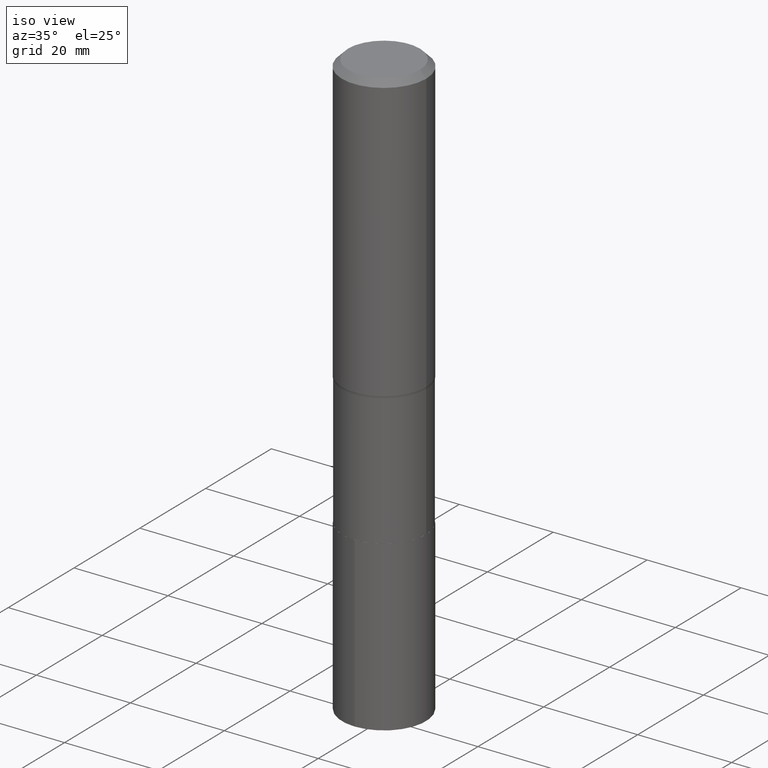
[diagram: clean part render]
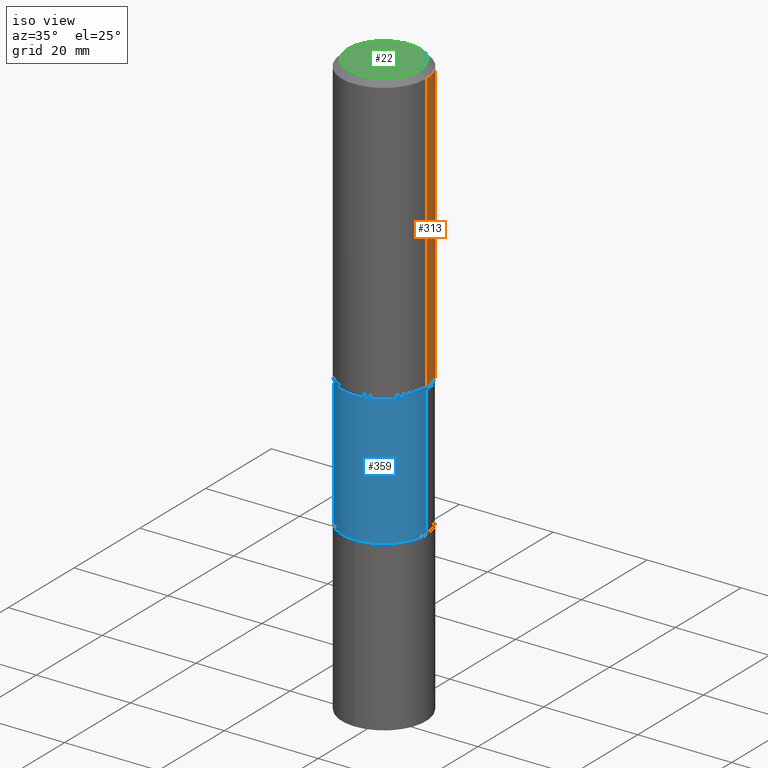
[diagram: same view with three faces highlighted in distinct colors, each labeled with its STEP entity id]
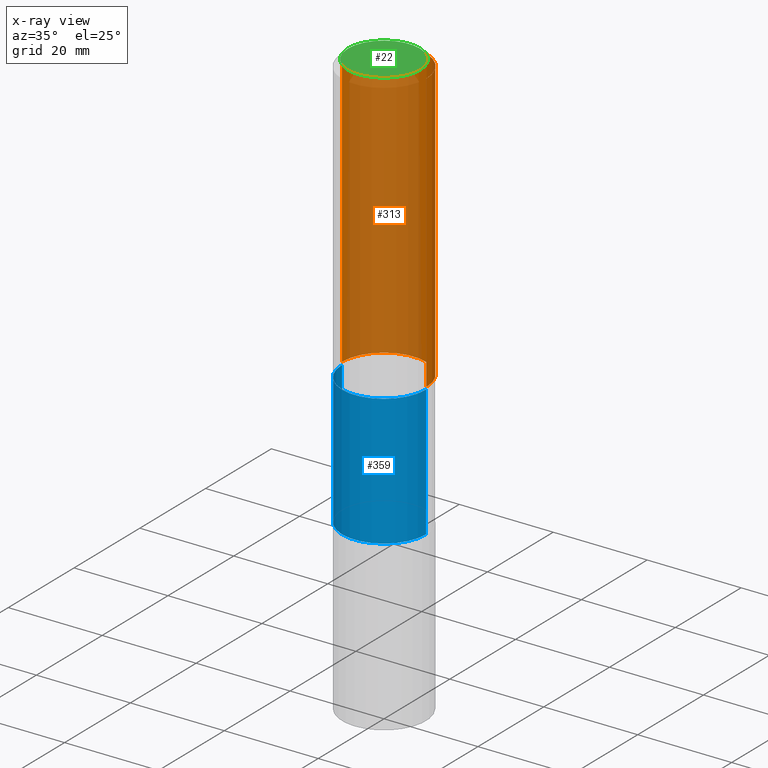
[diagram: x-ray of the same camera — body ghosted, the three highlighted faces saturated]
A machine part, iso view with three faces highlighted in distinct colors.
The next image is the same camera in x-ray (body ghosted, the three faces saturated) — at least one of them is partly hidden behind the body in this view.
Their STEP definitions:

[orange] entity #313 — the highlighted cylindrical surface (partial cylindrical patch) has radius 9.0005 mm, axis along (-0, 0, 1).
#2 = ORIENTED_EDGE ( 'NONE', *, *, #446, .T. ) ;
#21 = CARTESIAN_POINT ( 'NONE',  ( 0.3543500000000002759, -1.081493330997731886E-14, -2.388820009532888644 ) ) ;
#49 = CIRCLE ( 'NONE', #264, 0.3543500000000002759 ) ;
#54 = CARTESIAN_POINT ( 'NONE',  ( 0.3543500000000001648, -2.474412824838129483E-15, 1.727873240503290590E-29 ) ) ;
#59 = EDGE_LOOP ( 'NONE', ( #2, #254, #220, #343 ) ) ;
#99 = DIRECTION ( 'NONE',  ( 1.000000000000000000, -6.982962677686265922E-15, 4.876176775795935793E-29 ) ) ;
#100 = CARTESIAN_POINT ( 'NONE',  ( 1.299827807207562971E-30, -1.855809618628614763E-16, -0.05315250000000033143 ) ) ;
#103 = CIRCLE ( 'NONE', #425, 0.3543499999999999983 ) ;
#143 = CARTESIAN_POINT ( 'NONE',  ( 5.841784816903559502E-29, -8.340520485139185830E-15, -2.388820009532888644 ) ) ;
#148 = VERTEX_POINT ( 'NONE', #21 ) ;
#174 = VECTOR ( 'NONE', #381, 39.37007874015748143 ) ;
#187 = CARTESIAN_POINT ( 'NONE',  ( -0.3543499999999999983, -1.745242539335107473E-15, -0.05315250000000033143 ) ) ;
#220 = ORIENTED_EDGE ( 'NONE', *, *, #377, .F. ) ;
#232 = EDGE_CURVE ( 'NONE', #148, #389, #244, .T. ) ;
#244 = LINE ( 'NONE', #54, #451 ) ;
#248 = AXIS2_PLACEMENT_3D ( 'NONE', #288, #424, #99 ) ;
#252 = CYLINDRICAL_SURFACE ( 'NONE', #248, 0.3543500000000001648 ) ;
#254 = ORIENTED_EDGE ( 'NONE', *, *, #303, .T. ) ;
#264 = AXIS2_PLACEMENT_3D ( 'NONE', #143, #291, #281 ) ;
#274 = DIRECTION ( 'NONE',  ( -2.445468806185136877E-29, 3.491481338843145188E-15, 1.000000000000000000 ) ) ;
#281 = DIRECTION ( 'NONE',  ( 1.000000000000000000, -6.982962677686265922E-15, 0.000000000000000000 ) ) ;
#288 = CARTESIAN_POINT ( 'NONE',  ( 0.000000000000000000, 0.000000000000000000, 0.000000000000000000 ) ) ;
#291 = DIRECTION ( 'NONE',  ( -2.445468806185136597E-29, 3.491481338843145583E-15, 1.000000000000000000 ) ) ;
#303 = EDGE_CURVE ( 'NONE', #325, #466, #418, .T. ) ;
#309 = FACE_OUTER_BOUND ( 'NONE', #59, .T. ) ;
#312 = DIRECTION ( 'NONE',  ( -2.445468806185136597E-29, 3.491481338843145583E-15, 1.000000000000000000 ) ) ;
#313 = ADVANCED_FACE ( 'NONE', ( #309 ), #252, .T. ) ;
#325 = VERTEX_POINT ( 'NONE', #348 ) ;
#342 = CARTESIAN_POINT ( 'NONE',  ( -0.3543500000000001648, 2.517808184165916180E-15, -1.743024649231826627E-29 ) ) ;
#343 = ORIENTED_EDGE ( 'NONE', *, *, #232, .F. ) ;
#344 = CARTESIAN_POINT ( 'NONE',  ( 0.3543499999999999983, -2.659993786700990170E-15, -0.05315250000000033143 ) ) ;
#348 = CARTESIAN_POINT ( 'NONE',  ( -0.3543500000000002759, -5.822712300973268862E-15, -2.388820009532888644 ) ) ;
#377 = EDGE_CURVE ( 'NONE', #389, #466, #103, .T. ) ;
#381 = DIRECTION ( 'NONE',  ( -2.445468806185136877E-29, 3.491481338843145188E-15, 1.000000000000000000 ) ) ;
#389 = VERTEX_POINT ( 'NONE', #344 ) ;
#418 = LINE ( 'NONE', #342, #174 ) ;
#424 = DIRECTION ( 'NONE',  ( -2.445468806185136597E-29, 3.491481338843145583E-15, 1.000000000000000000 ) ) ;
#425 = AXIS2_PLACEMENT_3D ( 'NONE', #100, #312, #459 ) ;
#446 = EDGE_CURVE ( 'NONE', #148, #325, #49, .T. ) ;
#451 = VECTOR ( 'NONE', #274, 39.37007874015748143 ) ;
#459 = DIRECTION ( 'NONE',  ( 1.000000000000000000, -6.982962677686266711E-15, 0.000000000000000000 ) ) ;
#466 = VERTEX_POINT ( 'NONE', #187 ) ;

[blue] entity #359 — the highlighted cylindrical surface (partial cylindrical patch) has radius 8.9294 mm, axis along (-0, 0, 1).
#10 = DIRECTION ( 'NONE',  ( -2.445468806185136877E-29, 3.491481338843145188E-15, 1.000000000000000000 ) ) ;
#13 = CARTESIAN_POINT ( 'NONE',  ( 0.3515499999999998071, -1.086863225968481738E-14, -2.409800000000000164 ) ) ;
#38 = DIRECTION ( 'NONE',  ( -2.445468806185136597E-29, 3.491481338843145583E-15, 1.000000000000000000 ) ) ;
#52 = EDGE_CURVE ( 'NONE', #250, #419, #72, .T. ) ;
#63 = AXIS2_PLACEMENT_3D ( 'NONE', #128, #202, #340 ) ;
#72 = LINE ( 'NONE', #216, #155 ) ;
#79 = CIRCLE ( 'NONE', #217, 0.3515499999999998071 ) ;
#96 = EDGE_CURVE ( 'NONE', #419, #230, #79, .T. ) ;
#97 = CARTESIAN_POINT ( 'NONE',  ( 0.3515499999999999736, -1.469878728839574925E-14, -3.506799999999999695 ) ) ;
#105 = DIRECTION ( 'NONE',  ( -2.445468806185136597E-29, 3.491481338843145583E-15, 1.000000000000000000 ) ) ;
#107 = ORIENTED_EDGE ( 'NONE', *, *, #52, .F. ) ;
#108 = CYLINDRICAL_SURFACE ( 'NONE', #337, 0.3515499999999999181 ) ;
#127 = CARTESIAN_POINT ( 'NONE',  ( 0.3515499999999999181, -2.454860529340606276E-15, 1.714219945531060835E-29 ) ) ;
#128 = CARTESIAN_POINT ( 'NONE',  ( 8.575770009530037498E-29, -1.224392675905514179E-14, -3.506799999999999695 ) ) ;
#137 = VERTEX_POINT ( 'NONE', #97 ) ;
#155 = VECTOR ( 'NONE', #10, 39.37007874015748143 ) ;
#162 = CARTESIAN_POINT ( 'NONE',  ( -0.3515499999999999736, -7.830936257135043446E-15, -3.506799999999999695 ) ) ;
#169 = CARTESIAN_POINT ( 'NONE',  ( 0.000000000000000000, 0.000000000000000000, 0.000000000000000000 ) ) ;
#175 = CARTESIAN_POINT ( 'NONE',  ( -0.3515499999999998071, -7.830936257135045023E-15, -2.409800000000000164 ) ) ;
#197 = DIRECTION ( 'NONE',  ( -2.445468806185136877E-29, 3.491481338843145188E-15, 1.000000000000000000 ) ) ;
#202 = DIRECTION ( 'NONE',  ( -2.445468806185136597E-29, 3.491481338843145583E-15, 1.000000000000000000 ) ) ;
#204 = EDGE_LOOP ( 'NONE', ( #107, #251, #408, #292 ) ) ;
#216 = CARTESIAN_POINT ( 'NONE',  ( -0.3515499999999999181, 2.497912987564631622E-15, -1.729251630979111735E-29 ) ) ;
#217 = AXIS2_PLACEMENT_3D ( 'NONE', #221, #38, #322 ) ;
#221 = CARTESIAN_POINT ( 'NONE',  ( 5.893090729144942257E-29, -8.413771730344211499E-15, -2.409800000000000164 ) ) ;
#230 = VERTEX_POINT ( 'NONE', #13 ) ;
#250 = VERTEX_POINT ( 'NONE', #162 ) ;
#251 = ORIENTED_EDGE ( 'NONE', *, *, #285, .T. ) ;
#258 = FACE_OUTER_BOUND ( 'NONE', #204, .T. ) ;
#266 = EDGE_CURVE ( 'NONE', #137, #230, #453, .T. ) ;
#269 = CIRCLE ( 'NONE', #63, 0.3515499999999999736 ) ;
#282 = DIRECTION ( 'NONE',  ( 1.000000000000000000, -6.982962677686265922E-15, 4.876176775795935793E-29 ) ) ;
#285 = EDGE_CURVE ( 'NONE', #250, #137, #269, .T. ) ;
#292 = ORIENTED_EDGE ( 'NONE', *, *, #96, .F. ) ;
#322 = DIRECTION ( 'NONE',  ( 1.000000000000000000, -6.982962677686265133E-15, 0.000000000000000000 ) ) ;
#326 = VECTOR ( 'NONE', #197, 39.37007874015748143 ) ;
#337 = AXIS2_PLACEMENT_3D ( 'NONE', #169, #105, #282 ) ;
#340 = DIRECTION ( 'NONE',  ( 1.000000000000000000, -6.982962677686265922E-15, 0.000000000000000000 ) ) ;
#359 = ADVANCED_FACE ( 'NONE', ( #258 ), #108, .T. ) ;
#408 = ORIENTED_EDGE ( 'NONE', *, *, #266, .T. ) ;
#419 = VERTEX_POINT ( 'NONE', #175 ) ;
#453 = LINE ( 'NONE', #127, #326 ) ;

[green] entity #22 — the highlighted planar face has unit normal (0, -0, -1).
#20 = CARTESIAN_POINT ( 'NONE',  ( -1.002970424325033577E-46, 1.431975951230896212E-32, 4.101342130344485961E-18 ) ) ;
#22 = ADVANCED_FACE ( 'NONE', ( #433 ), #85, .F. ) ;
#53 = DIRECTION ( 'NONE',  ( 1.000000000000000000, -6.982962677686266711E-15, 4.876239486148337140E-29 ) ) ;
#85 = PLANE ( 'NONE',  #370 ) ;
#120 = VERTEX_POINT ( 'NONE', #412 ) ;
#144 = VERTEX_POINT ( 'NONE', #414 ) ;
#164 = DIRECTION ( 'NONE',  ( -2.445468806185136597E-29, 3.491481338843145583E-15, 1.000000000000000000 ) ) ;
#165 = CARTESIAN_POINT ( 'NONE',  ( -1.002970424325033577E-46, 1.431975951230896212E-32, 4.101342130344485961E-18 ) ) ;
#176 = EDGE_CURVE ( 'NONE', #144, #120, #310, .T. ) ;
#190 = AXIS2_PLACEMENT_3D ( 'NONE', #165, #410, #53 ) ;
#234 = DIRECTION ( 'NONE',  ( 2.438088387897960049E-29, -3.491481338843145188E-15, -1.000000000000000000 ) ) ;
#260 = DIRECTION ( 'NONE',  ( -1.000000000000000000, 6.982962677686265922E-15, -4.876176775795935793E-29 ) ) ;
#272 = ORIENTED_EDGE ( 'NONE', *, *, #299, .T. ) ;
#283 = EDGE_LOOP ( 'NONE', ( #272, #438 ) ) ;
#293 = CARTESIAN_POINT ( 'NONE',  ( -5.014852121625167883E-47, 7.159879756154481060E-33, 2.050671065172242981E-18 ) ) ;
#299 = EDGE_CURVE ( 'NONE', #120, #144, #306, .T. ) ;
#306 = CIRCLE ( 'NONE', #362, 0.3011975000000000069 ) ;
#308 = DIRECTION ( 'NONE',  ( 1.000000000000000000, -6.982962677686266711E-15, 4.876239486148337140E-29 ) ) ;
#310 = CIRCLE ( 'NONE', #190, 0.3011975000000000069 ) ;
#362 = AXIS2_PLACEMENT_3D ( 'NONE', #20, #164, #308 ) ;
#370 = AXIS2_PLACEMENT_3D ( 'NONE', #293, #234, #260 ) ;
#410 = DIRECTION ( 'NONE',  ( -2.445468806185136597E-29, 3.491481338843145583E-15, 1.000000000000000000 ) ) ;
#412 = CARTESIAN_POINT ( 'NONE',  ( -0.3011975000000000069, 2.196041382043838255E-15, 4.101342130329452923E-18 ) ) ;
#414 = CARTESIAN_POINT ( 'NONE',  ( 0.3011975000000000069, -2.341481636528497322E-15, 4.101342130360026675E-18 ) ) ;
#433 = FACE_OUTER_BOUND ( 'NONE', #283, .T. ) ;
#438 = ORIENTED_EDGE ( 'NONE', *, *, #176, .T. ) ;